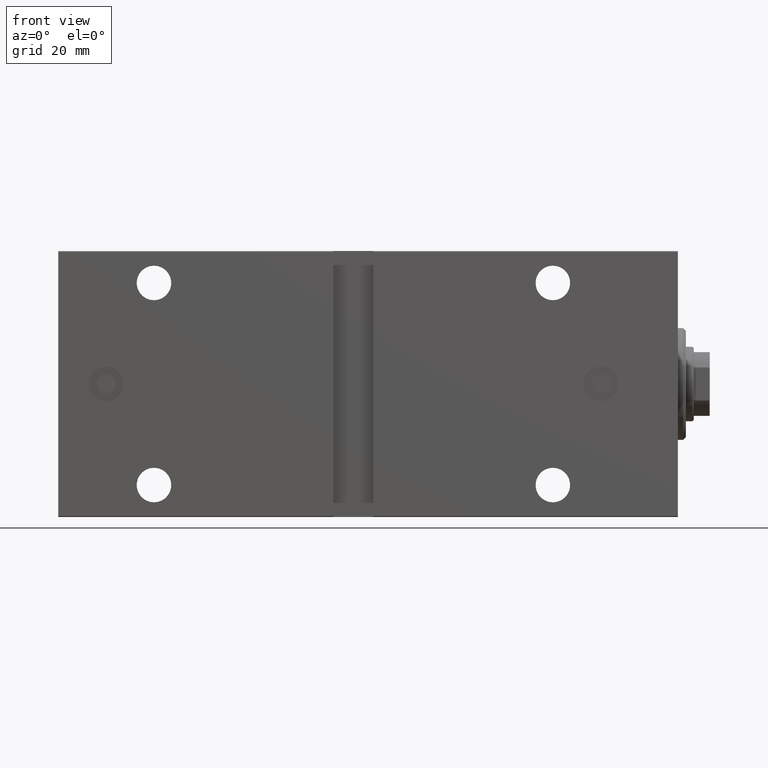
[diagram: clean part render]
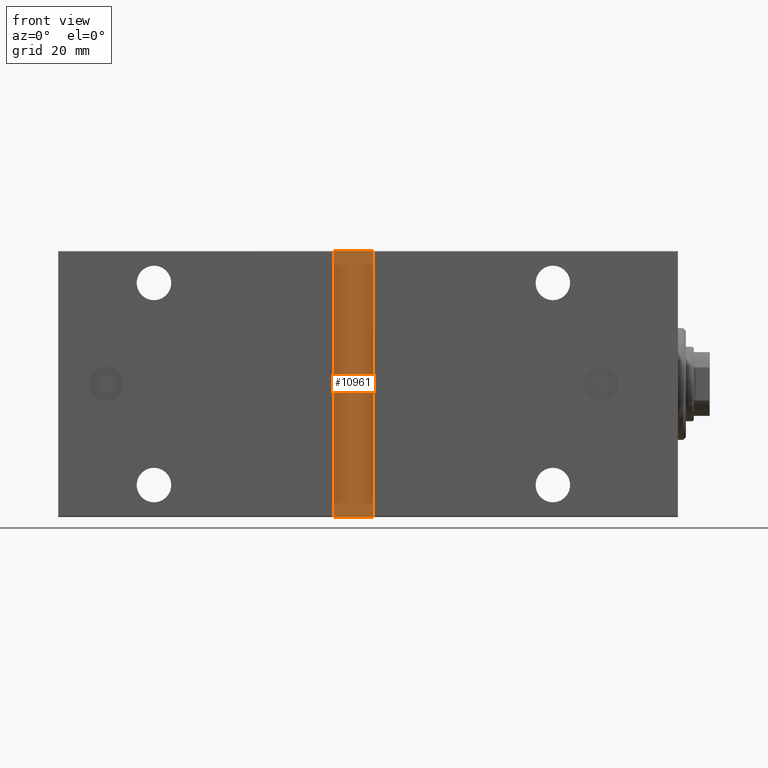
[diagram: same view with one face highlighted and labeled with its STEP entity id]
A machine part, front view. The second image highlights one B-rep face of the part: STEP entity #10961.
In plain terms, the highlighted planar face has unit normal (-0, 1, -0).
Its self-contained STEP definition (entity closure, byte-faithful):
#368 = DIRECTION ( 'NONE',  ( 1.000000000000000000, -0.000000000000000000, -0.000000000000000000 ) ) ;
#783 = CARTESIAN_POINT ( 'NONE',  ( 0.000000000000000000, 32.50000000000000000, 4.573361891211581766E-15 ) ) ;
#1943 = DIRECTION ( 'NONE',  ( -1.000000000000000000, 0.000000000000000000, 0.000000000000000000 ) ) ;
#3146 = ORIENTED_EDGE ( 'NONE', *, *, #33464, .T. ) ;
#7099 = CARTESIAN_POINT ( 'NONE',  ( 129.5000000000000284, 32.49999999999999289, 50.00000000000001421 ) ) ;
#7313 = LINE ( 'NONE', #7099, #9429 ) ;
#7721 = DIRECTION ( 'NONE',  ( 0.000000000000000000, 1.387778780781445676E-16, -1.000000000000000000 ) ) ;
#7938 = PLANE ( 'NONE',  #42837 ) ;
#8147 = DIRECTION ( 'NONE',  ( 0.000000000000000000, -1.000000000000000000, -1.387778780781445676E-16 ) ) ;
#8682 = VERTEX_POINT ( 'NONE', #20274 ) ;
#8916 = VERTEX_POINT ( 'NONE', #26301 ) ;
#9429 = VECTOR ( 'NONE', #368, 1000.000000000000000 ) ;
#10961 = ADVANCED_FACE ( 'NONE', ( #34811 ), #7938, .F. ) ;
#12321 = EDGE_CURVE ( 'NONE', #35202, #34253, #25158, .T. ) ;
#12691 = VECTOR ( 'NONE', #1943, 1000.000000000000000 ) ;
#13074 = ORIENTED_EDGE ( 'NONE', *, *, #12321, .T. ) ;
#14247 = EDGE_CURVE ( 'NONE', #8916, #8682, #17912, .T. ) ;
#15394 = ORIENTED_EDGE ( 'NONE', *, *, #40346, .T. ) ;
#16868 = ORIENTED_EDGE ( 'NONE', *, *, #14247, .T. ) ;
#17912 = LINE ( 'NONE', #31131, #21412 ) ;
#18010 = CARTESIAN_POINT ( 'NONE',  ( 114.5000000000000142, 32.49999999999999289, 50.00000000000001421 ) ) ;
#19476 = CARTESIAN_POINT ( 'NONE',  ( 114.5000000000000142, 32.50000000000000711, -49.99999999999999289 ) ) ;
#20274 = CARTESIAN_POINT ( 'NONE',  ( 129.5000000000000284, 32.50000000000002132, -50.00000000000000711 ) ) ;
#21412 = VECTOR ( 'NONE', #30911, 1000.000000000000000 ) ;
#25158 = LINE ( 'NONE', #38193, #36667 ) ;
#25982 = LINE ( 'NONE', #32272, #12691 ) ;
#26301 = CARTESIAN_POINT ( 'NONE',  ( 129.5000000000000284, 32.49999999999999289, 50.00000000000001421 ) ) ;
#30911 = DIRECTION ( 'NONE',  ( -2.775557561562891351E-16, 1.387778780781445676E-16, -1.000000000000000000 ) ) ;
#31131 = CARTESIAN_POINT ( 'NONE',  ( 129.5000000000000000, 32.50000000000000711, -49.99999999999999289 ) ) ;
#32272 = CARTESIAN_POINT ( 'NONE',  ( 129.5000000000000000, 32.50000000000000711, -49.99999999999999289 ) ) ;
#33464 = EDGE_CURVE ( 'NONE', #8682, #35202, #25982, .T. ) ;
#34253 = VERTEX_POINT ( 'NONE', #18010 ) ;
#34811 = FACE_OUTER_BOUND ( 'NONE', #41467, .T. ) ;
#35202 = VERTEX_POINT ( 'NONE', #19476 ) ;
#36667 = VECTOR ( 'NONE', #38827, 1000.000000000000000 ) ;
#38193 = CARTESIAN_POINT ( 'NONE',  ( 114.5000000000000142, 32.50000000000000711, -49.99999999999999289 ) ) ;
#38827 = DIRECTION ( 'NONE',  ( 0.000000000000000000, -1.387778780781445676E-16, 1.000000000000000000 ) ) ;
#40346 = EDGE_CURVE ( 'NONE', #34253, #8916, #7313, .T. ) ;
#41467 = EDGE_LOOP ( 'NONE', ( #13074, #15394, #16868, #3146 ) ) ;
#42837 = AXIS2_PLACEMENT_3D ( 'NONE', #783, #8147, #7721 ) ;